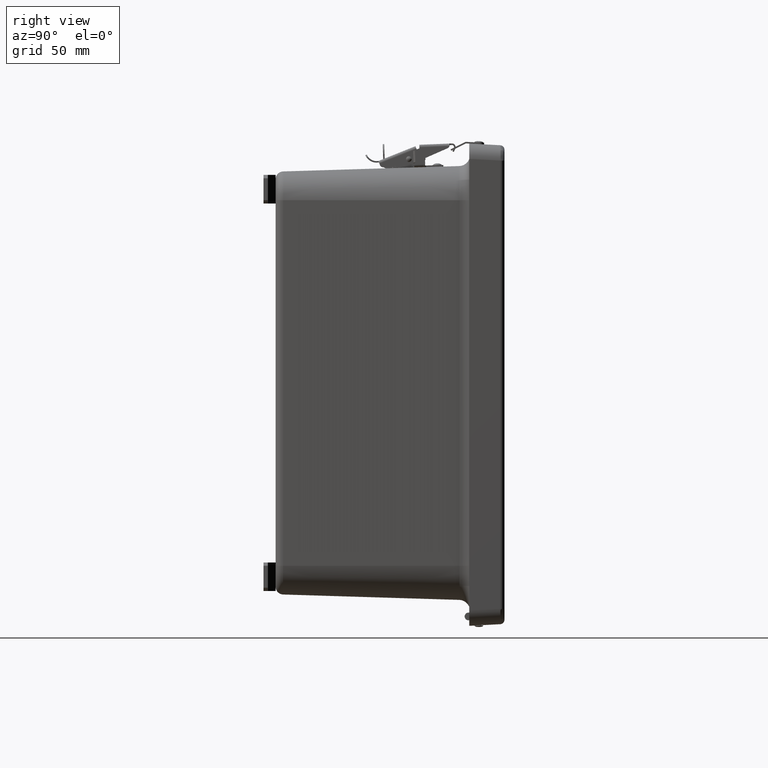
[diagram: clean part render]
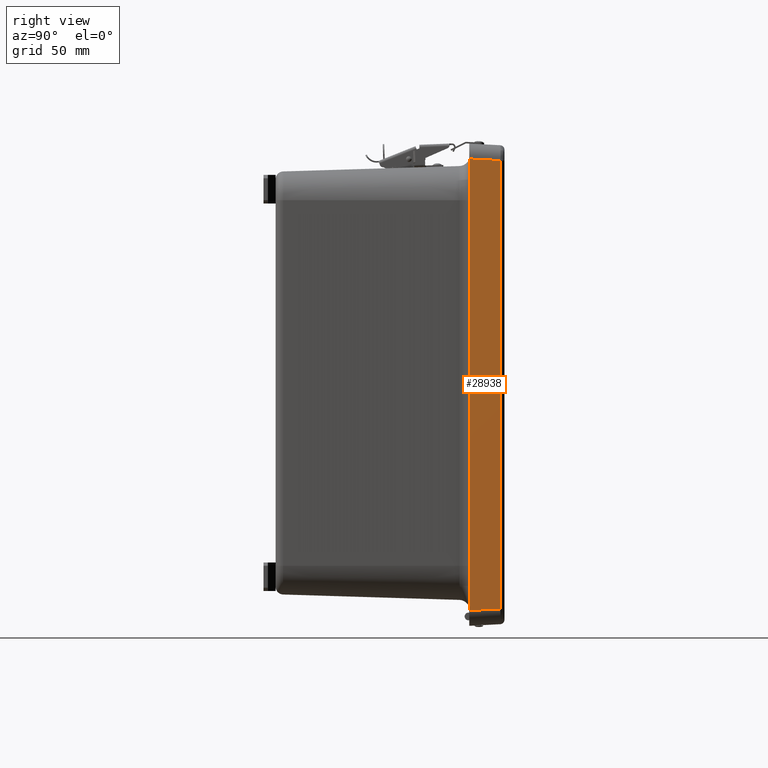
[diagram: same view with one face highlighted and labeled with its STEP entity id]
A machine part, right view. The second image highlights one B-rep face of the part: STEP entity #28938.
In plain terms, the highlighted planar face has unit normal (0.9986, 0.0523, 0).
Its self-contained STEP definition (entity closure, byte-faithful):
#4197 = DIRECTION ( 'NONE',  ( -0.05226442768871403900, -0.05226442768871403900, -0.9972646886342373400 ) ) ;
#5153 = ORIENTED_EDGE ( 'NONE', *, *, #7289, .T. ) ;
#6691 = VECTOR ( 'NONE', #80912, 39.37007874015748900 ) ;
#7289 = EDGE_CURVE ( 'NONE', #100456, #52138, #80845, .T. ) ;
#9967 = CARTESIAN_POINT ( 'NONE',  ( -6.377399235034175700, 6.813800341721920600, -0.8815419945303678600 ) ) ;
#12015 = VECTOR ( 'NONE', #54650, 39.37007874015748100 ) ;
#13794 = ORIENTED_EDGE ( 'NONE', *, *, #85058, .F. ) ;
#15516 = VECTOR ( 'NONE', #34111, 39.37007874015748100 ) ;
#20484 = VERTEX_POINT ( 'NONE', #51131 ) ;
#20869 = LINE ( 'NONE', #104979, #6691 ) ;
#25797 = EDGE_CURVE ( 'NONE', #20484, #100456, #96567, .T. ) ;
#26530 = EDGE_LOOP ( 'NONE', ( #54284, #5153, #73910, #13794 ) ) ;
#28938 = ADVANCED_FACE ( 'NONE', ( #87200 ), #78773, .T. ) ;
#30025 = CARTESIAN_POINT ( 'NONE',  ( 6.859999999999998500, 6.860000000000002100, 0.0000000000000000000 ) ) ;
#34111 = DIRECTION ( 'NONE',  ( -1.000000000000000000, -1.592914282019978400E-016, 1.538626643785206500E-033 ) ) ;
#47578 = DIRECTION ( 'NONE',  ( 0.0000000000000000000, 0.05233595624294395300, 0.9986295347545738300 ) ) ;
#51131 = CARTESIAN_POINT ( 'NONE',  ( 6.423598893312250100, 6.860000000000002100, 0.0000000000000000000 ) ) ;
#51662 = LINE ( 'NONE', #30025, #12015 ) ;
#52138 = VERTEX_POINT ( 'NONE', #9967 ) ;
#54284 = ORIENTED_EDGE ( 'NONE', *, *, #25797, .T. ) ;
#54402 = CARTESIAN_POINT ( 'NONE',  ( 6.859999999999998500, 6.860000000000002100, 0.0000000000000000000 ) ) ;
#54650 = DIRECTION ( 'NONE',  ( -1.000000000000000000, -1.592914282019978400E-016, 0.0000000000000000000 ) ) ;
#60742 = CARTESIAN_POINT ( 'NONE',  ( -6.423598893312255400, 6.859999999999999400, 0.0000000000000000000 ) ) ;
#73910 = ORIENTED_EDGE ( 'NONE', *, *, #99747, .T. ) ;
#74721 = VECTOR ( 'NONE', #4197, 39.37007874015748900 ) ;
#78773 = PLANE ( 'NONE',  #86334 ) ;
#80845 = LINE ( 'NONE', #98648, #15516 ) ;
#80912 = DIRECTION ( 'NONE',  ( -0.05226442768871403900, 0.05226442768871402500, 0.9972646886342373400 ) ) ;
#85058 = EDGE_CURVE ( 'NONE', #20484, #92453, #51662, .T. ) ;
#86334 = AXIS2_PLACEMENT_3D ( 'NONE', #54402, #97451, #47578 ) ;
#87200 = FACE_OUTER_BOUND ( 'NONE', #26530, .T. ) ;
#92453 = VERTEX_POINT ( 'NONE', #60742 ) ;
#94085 = CARTESIAN_POINT ( 'NONE',  ( 6.424790953658515500, 6.861192060346268400, 0.02274586640712814000 ) ) ;
#96567 = LINE ( 'NONE', #94085, #74721 ) ;
#97451 = DIRECTION ( 'NONE',  ( -1.590731248357527400E-016, 0.9986295347545739400, -0.05233595624294396000 ) ) ;
#98648 = CARTESIAN_POINT ( 'NONE',  ( -6.371191114029207000, 6.813800341721920600, -0.8815419945303678600 ) ) ;
#99747 = EDGE_CURVE ( 'NONE', #52138, #92453, #20869, .T. ) ;
#100456 = VERTEX_POINT ( 'NONE', #103698 ) ;
#103698 = CARTESIAN_POINT ( 'NONE',  ( 6.377399235034169500, 6.813800341721922400, -0.8815419945303681900 ) ) ;
#104979 = CARTESIAN_POINT ( 'NONE',  ( -6.387313807748173900, 6.823714914435918800, -0.6923606773741433100 ) ) ;